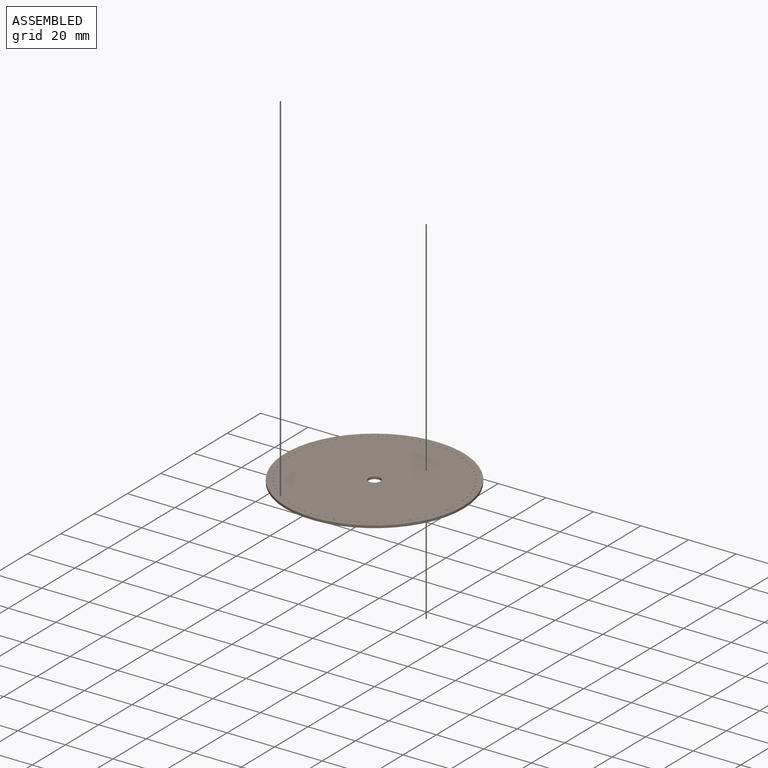
[diagram: assembled view]
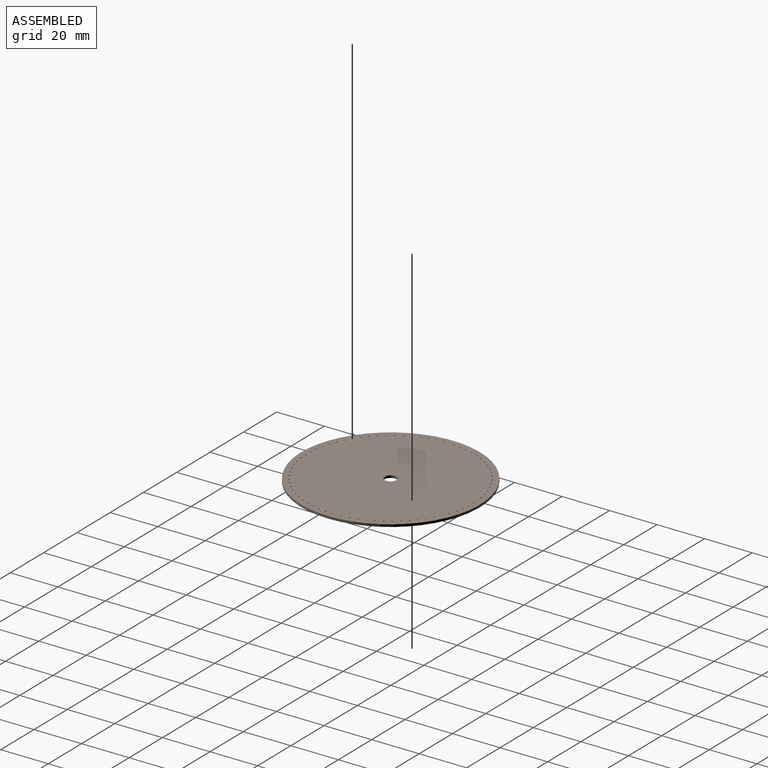
[diagram: assembled view, second angle]
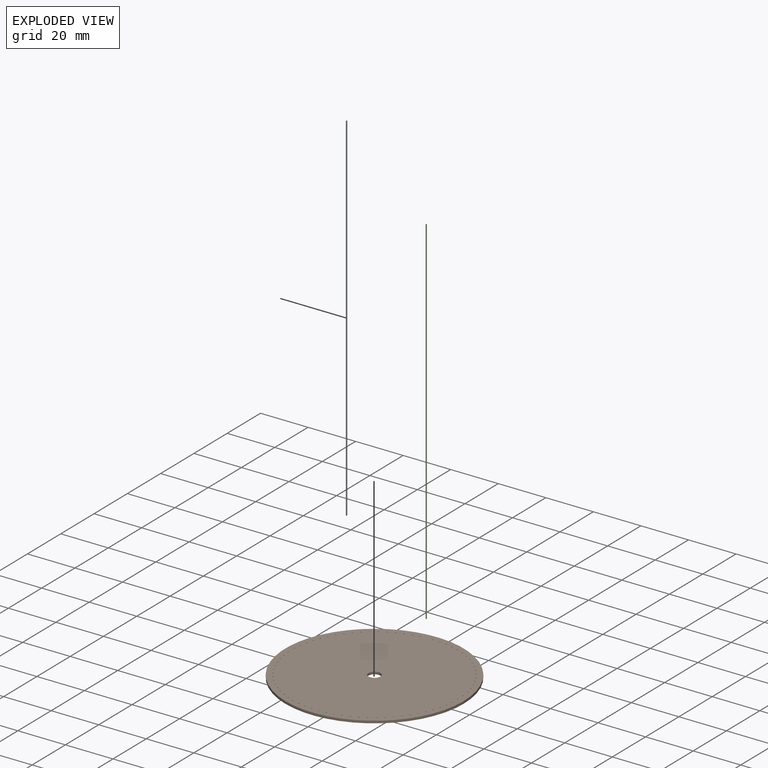
[diagram: exploded view]
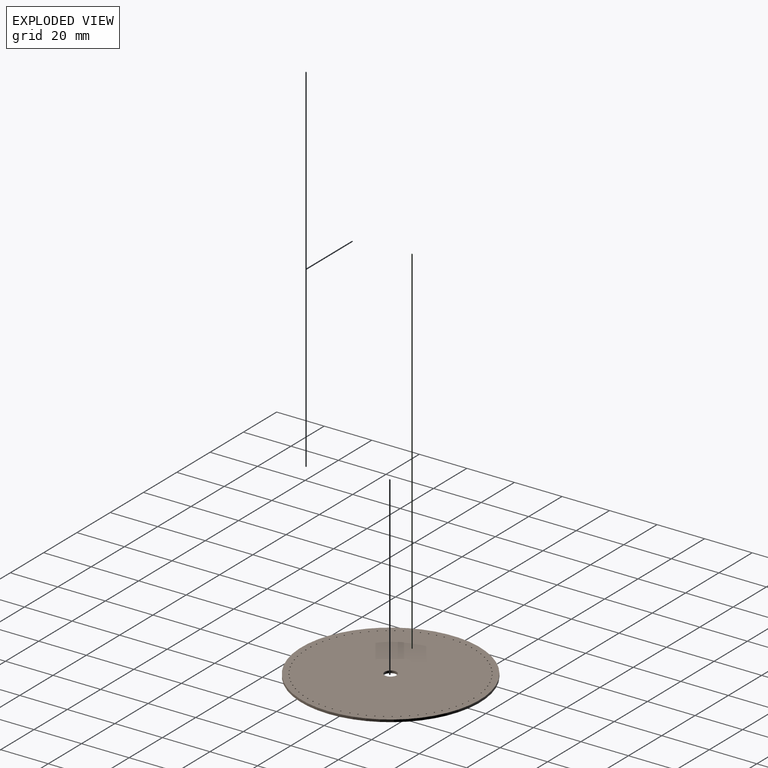
[diagram: exploded view, second angle]
ASSEMBLY  parts=3 mates=3
PART A: 3 faces, bbox 0.5x0.5x150 mm
  f0: cylinder r=0.23mm len=150mm, axis (0,0,-1), area 212.1mm2, adj f1,f2
  f1: plane 0.45x0.45mm, normal (0,0,1), area 0.2mm2, adj f0
  f2: plane 0.45x0.45mm, normal (0,0,-1), area 0.2mm2, adj f0
PART B: 76 faces, bbox 75x75x1 mm
  f0: cylinder r=2.5mm len=5mm, axis (0,0,-1), area 15.7mm2, adj f74,f75
  f1: cylinder r=0.25mm len=1mm, axis (0,0,-1), area 1.6mm2, adj f74,f75
  f2: cylinder r=0.25mm len=1mm, axis (0,0,-1), area 1.6mm2, adj f74,f75
  f3: cylinder r=0.25mm len=1mm, axis (0,0,-1), area 1.6mm2, adj f74,f75
  f4: cylinder r=0.25mm len=1mm, axis (0,0,-1), area 1.6mm2, adj f74,f75
  f5: cylinder r=0.25mm len=1mm, axis (0,0,-1), area 1.6mm2, adj f74,f75
  f6: cylinder r=0.25mm len=1mm, axis (0,0,-1), area 1.6mm2, adj f74,f75
  f7: cylinder r=0.25mm len=1mm, axis (0,0,-1), area 1.6mm2, adj f74,f75
  f8: cylinder r=0.25mm len=1mm, axis (0,0,-1), area 1.6mm2, adj f74,f75
  f9: cylinder r=0.25mm len=1mm, axis (0,0,-1), area 1.6mm2, adj f74,f75
  f10: cylinder r=0.25mm len=1mm, axis (0,0,-1), area 1.6mm2, adj f74,f75
  f11: cylinder r=0.25mm len=1mm, axis (0,0,-1), area 1.6mm2, adj f74,f75
  f12: cylinder r=0.25mm len=1mm, axis (0,0,-1), area 1.6mm2, adj f74,f75
  f13: cylinder r=0.25mm len=1mm, axis (0,0,-1), area 1.6mm2, adj f74,f75
  f14: cylinder r=0.25mm len=1mm, axis (0,0,-1), area 1.6mm2, adj f74,f75
  f15: cylinder r=0.25mm len=1mm, axis (0,0,-1), area 1.6mm2, adj f74,f75
  f16: cylinder r=0.25mm len=1mm, axis (0,0,-1), area 1.6mm2, adj f74,f75
  f17: cylinder r=0.25mm len=1mm, axis (0,0,-1), area 1.6mm2, adj f74,f75
  f18: cylinder r=0.25mm len=1mm, axis (0,0,-1), area 1.6mm2, adj f74,f75
  f19: cylinder r=0.25mm len=1mm, axis (0,0,-1), area 1.6mm2, adj f74,f75
  f20: cylinder r=0.25mm len=1mm, axis (0,0,-1), area 1.6mm2, adj f74,f75
  f21: cylinder r=0.25mm len=1mm, axis (0,0,-1), area 1.6mm2, adj f74,f75
  f22: cylinder r=0.25mm len=1mm, axis (0,0,-1), area 1.6mm2, adj f74,f75
  f23: cylinder r=0.25mm len=1mm, axis (0,0,-1), area 1.6mm2, adj f74,f75
  f24: cylinder r=0.25mm len=1mm, axis (0,0,-1), area 1.6mm2, adj f74,f75
  f25: cylinder r=0.25mm len=1mm, axis (0,0,-1), area 1.6mm2, adj f74,f75
  f26: cylinder r=0.25mm len=1mm, axis (0,0,-1), area 1.6mm2, adj f74,f75
  f27: cylinder r=0.25mm len=1mm, axis (0,0,-1), area 1.6mm2, adj f74,f75
  f28: cylinder r=0.25mm len=1mm, axis (0,0,-1), area 1.6mm2, adj f74,f75
  f29: cylinder r=0.25mm len=1mm, axis (0,0,-1), area 1.6mm2, adj f74,f75
  f30: cylinder r=0.25mm len=1mm, axis (0,0,-1), area 1.6mm2, adj f74,f75
  f31: cylinder r=0.25mm len=1mm, axis (0,0,-1), area 1.6mm2, adj f74,f75
  f32: cylinder r=0.25mm len=1mm, axis (0,0,-1), area 1.6mm2, adj f74,f75
  f33: cylinder r=0.25mm len=1mm, axis (0,0,-1), area 1.6mm2, adj f74,f75
  f34: cylinder r=0.25mm len=1mm, axis (0,0,-1), area 1.6mm2, adj f74,f75
  f35: cylinder r=0.25mm len=1mm, axis (0,0,-1), area 1.6mm2, adj f74,f75
  f36: cylinder r=0.25mm len=1mm, axis (0,0,-1), area 1.6mm2, adj f74,f75
  f37: cylinder r=0.25mm len=1mm, axis (0,0,-1), area 1.6mm2, adj f74,f75
  f38: cylinder r=0.25mm len=1mm, axis (0,0,-1), area 1.6mm2, adj f74,f75
  f39: cylinder r=0.25mm len=1mm, axis (0,0,-1), area 1.6mm2, adj f74,f75
  f40: cylinder r=0.25mm len=1mm, axis (0,0,-1), area 1.6mm2, adj f74,f75
  f41: cylinder r=0.25mm len=1mm, axis (0,0,-1), area 1.6mm2, adj f74,f75
  f42: cylinder r=0.25mm len=1mm, axis (0,0,-1), area 1.6mm2, adj f74,f75
  f43: cylinder r=0.25mm len=1mm, axis (0,0,-1), area 1.6mm2, adj f74,f75
  f44: cylinder r=0.25mm len=1mm, axis (0,0,-1), area 1.6mm2, adj f74,f75
  f45: cylinder r=0.25mm len=1mm, axis (0,0,-1), area 1.6mm2, adj f74,f75
  f46: cylinder r=0.25mm len=1mm, axis (0,0,-1), area 1.6mm2, adj f74,f75
  f47: cylinder r=0.25mm len=1mm, axis (0,0,-1), area 1.6mm2, adj f74,f75
  f48: cylinder r=0.25mm len=1mm, axis (0,0,-1), area 1.6mm2, adj f74,f75
  f49: cylinder r=0.25mm len=1mm, axis (0,0,-1), area 1.6mm2, adj f74,f75
  f50: cylinder r=0.25mm len=1mm, axis (0,0,-1), area 1.6mm2, adj f74,f75
  f51: cylinder r=0.25mm len=1mm, axis (0,0,-1), area 1.6mm2, adj f74,f75
  f52: cylinder r=0.25mm len=1mm, axis (0,0,-1), area 1.6mm2, adj f74,f75
  f53: cylinder r=0.25mm len=1mm, axis (0,0,-1), area 1.6mm2, adj f74,f75
  f54: cylinder r=0.25mm len=1mm, axis (0,0,-1), area 1.6mm2, adj f74,f75
  f55: cylinder r=0.25mm len=1mm, axis (0,0,-1), area 1.6mm2, adj f74,f75
  f56: cylinder r=0.25mm len=1mm, axis (0,0,-1), area 1.6mm2, adj f74,f75
  f57: cylinder r=0.25mm len=1mm, axis (0,0,-1), area 1.6mm2, adj f74,f75
  f58: cylinder r=0.25mm len=1mm, axis (0,0,-1), area 1.6mm2, adj f74,f75
  f59: cylinder r=0.25mm len=1mm, axis (0,0,-1), area 1.6mm2, adj f74,f75
  f60: cylinder r=0.25mm len=1mm, axis (0,0,-1), area 1.6mm2, adj f74,f75
  f61: cylinder r=0.25mm len=1mm, axis (0,0,-1), area 1.6mm2, adj f74,f75
  f62: cylinder r=0.25mm len=1mm, axis (0,0,-1), area 1.6mm2, adj f74,f75
  f63: cylinder r=0.25mm len=1mm, axis (0,0,-1), area 1.6mm2, adj f74,f75
  f64: cylinder r=0.25mm len=1mm, axis (0,0,-1), area 1.6mm2, adj f74,f75
  f65: cylinder r=0.25mm len=1mm, axis (0,0,-1), area 1.6mm2, adj f74,f75
  f66: cylinder r=0.25mm len=1mm, axis (0,0,-1), area 1.6mm2, adj f74,f75
  f67: cylinder r=0.25mm len=1mm, axis (0,0,-1), area 1.6mm2, adj f74,f75
  f68: cylinder r=0.25mm len=1mm, axis (0,0,-1), area 1.6mm2, adj f74,f75
  f69: cylinder r=0.25mm len=1mm, axis (0,0,-1), area 1.6mm2, adj f74,f75
  f70: cylinder r=0.25mm len=1mm, axis (0,0,-1), area 1.6mm2, adj f74,f75
  f71: cylinder r=0.25mm len=1mm, axis (0,0,-1), area 1.6mm2, adj f74,f75
  f72: cylinder r=0.25mm len=1mm, axis (0,0,-1), area 1.6mm2, adj f74,f75
  f73: cylinder r=37.5mm len=75mm, axis (0,0,-1), area 235.6mm2, adj f74,f75
  f74: plane 75x75mm, normal (0,0,1), area 4384.1mm2, adj f0,f1,f2,f3,f4,f5,f6,f7
  f75: plane 75x75mm, normal (0,0,-1), area 4384.1mm2, adj f0,f1,f2,f3,f4,f5,f6,f7
PART C: same geometry as A
PLACE A t=(-18.97,-29.41,76)mm
PLACE B at identity fixed
PLACE C t=(10.38,16.25,19.67)mm
MATE cylindrical A.f0 <-> A.f0  axis (0,0,1) through (-18.97,-29.41,151)mm
MATE slider B.f29 <-> B.f29  axis (0,0,-1) through (-18.97,-29.41,0)mm
MATE slider A.f0 <-> B.f29  axis (0,0,-1) through (-18.97,-29.41,1)mm
